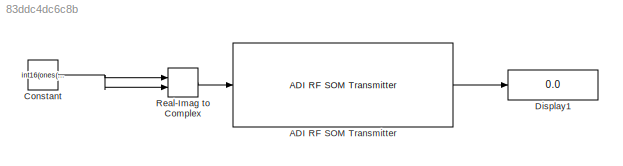
MODEL slx_83ddc4dc6c8b
KIND model
CONFIG AbsTol = auto
CONFIG EnableMultiTasking = off
CONFIG FixedStep = auto
CONFIG MaxStep = auto
CONFIG MinStep = auto
CONFIG RelTol = 1e-3
CONFIG SampleTimeConstraint = Unconstrained
CONFIG Solver = FixedStepDiscrete
CONFIG SolverName = FixedStepDiscrete
CONFIG StartTime = 0.0
CONFIG StopTime = inf
BLOCK [Reference] ADI RF SOM Transmitter  REF=adirfsom_lib/ADI RF SOM
Transmitter
  Ports = [1, 1]
  SourceBlock = adirfsom_lib/ADI RF SOM\nTransmitter
  SourceProductName = Communications System Toolbox Support Package for Xilinx Zynq-Based Radio
  SourceType = comm.internal.SDRTxADIRFSOMSL
BLOCK [Constant] Constant
  Value = int16(ones(2^19,1))
BLOCK [Display] Display1
  Decimation = 1
  Ports = [1]
BLOCK [RealImagToComplex] Real-Imag to Complex
  Ports = [2, 1]
LINE ADI RF SOM Transmitter:1 -> Display1:1
NET Constant:1 -> Real-Imag to Complex:1, Real-Imag to Complex:2
LINE Real-Imag to Complex:1 -> ADI RF SOM Transmitter:1
note: NET lines group one-source signal fan-out (src -> all destinations, sorted); 1:1 wires keep LINE
